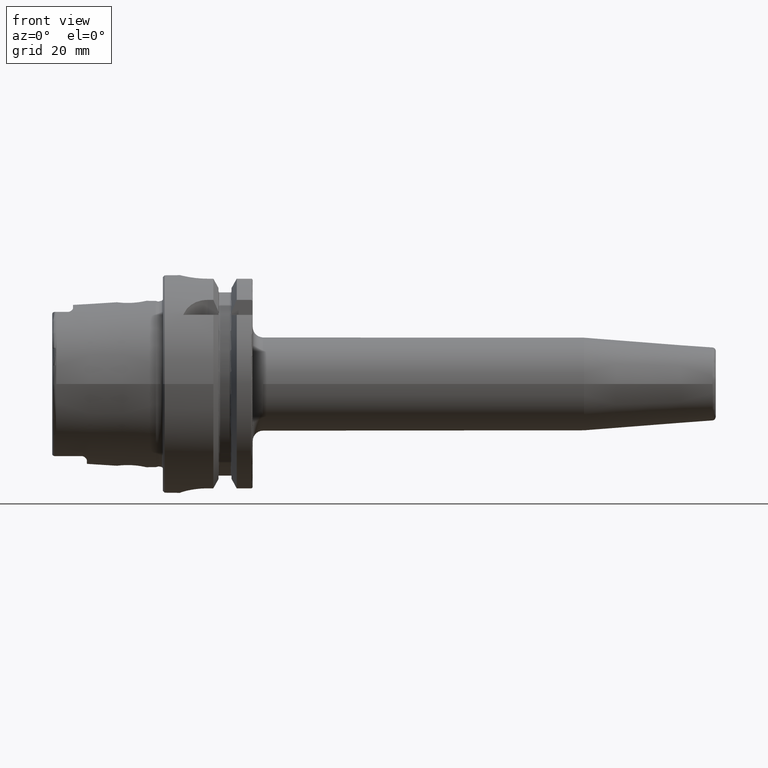
[diagram: clean part render]
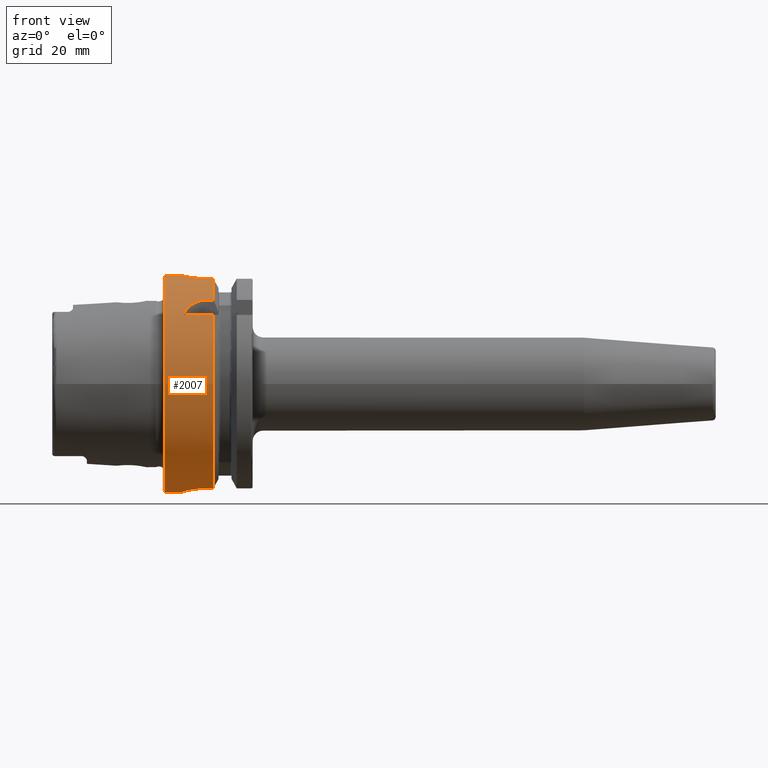
[diagram: same view with one face highlighted and labeled with its STEP entity id]
A machine part, front view. The second image highlights one B-rep face of the part: STEP entity #2007.
In plain terms, the highlighted cylindrical surface (bore or boss wall) has radius 31.5 mm, axis along (1, 0, 0).
Its self-contained STEP definition (entity closure, byte-faithful):
#57=B_SPLINE_CURVE_WITH_KNOTS('',3,(#3708,#3709,#3710,#3711,#3712,#3713,
#3714,#3715,#3716,#3717,#3718,#3719,#3720,#3721,#3722,#3723,#3724,#3725,
#3726,#3727,#3728,#3729,#3730,#3731,#3732,#3733),.UNSPECIFIED.,.F.,.F.,
(4,2,2,2,2,2,2,2,2,2,2,2,4),(0.,0.188688694287612,0.377377388575223,0.56606194688798,
0.754746505200737,0.943431063513494,1.13211562182625,1.32080431611386,1.50949301040147,
1.69818170468909,1.8868703989767,2.07555495728945,2.26423951560221),
 .UNSPECIFIED.);
#58=B_SPLINE_CURVE_WITH_KNOTS('',3,(#3734,#3735,#3736,#3737,#3738,#3739,
#3740,#3741,#3742,#3743),.UNSPECIFIED.,.F.,.F.,(4,2,2,2,4),(2.26423951560221,
2.45292407391497,2.64160863222773,2.83029732651534,3.01898602080295),
 .UNSPECIFIED.);
#61=B_SPLINE_CURVE_WITH_KNOTS('',3,(#3800,#3801,#3802,#3803,#3804,#3805,
#3806,#3807,#3808,#3809,#3810,#3811),.UNSPECIFIED.,.F.,.F.,(4,2,2,2,2,4),
(1.1085154204615,1.31979218709236,1.52798350480179,1.73617482251122,1.90421770126337,
2.07226058001552),.UNSPECIFIED.);
#71=B_SPLINE_CURVE_WITH_KNOTS('',3,(#3980,#3981,#3982,#3983,#3984,#3985,
#3986,#3987,#3988,#3989),.UNSPECIFIED.,.F.,.F.,(4,2,2,2,4),(1.20927420824097,
1.5131742975437,1.81707438684643,2.12000449915965,2.42293461147287),
 .UNSPECIFIED.);
#74=B_SPLINE_CURVE_WITH_KNOTS('',3,(#4015,#4016,#4017,#4018,#4019,#4020,
#4021,#4022,#4023,#4024),.UNSPECIFIED.,.F.,.F.,(4,2,2,2,4),(0.,0.30293011231322,
0.605860224626439,0.90976031392917,1.2136604032319),.UNSPECIFIED.);
#84=B_SPLINE_CURVE_WITH_KNOTS('',3,(#4170,#4171,#4172,#4173,#4174,#4175,
#4176,#4177,#4178,#4179,#4180,#4181,#4182,#4183,#4184,#4185,#4186,#4187),
 .UNSPECIFIED.,.F.,.F.,(4,2,2,2,2,2,2,2,4),(0.,0.302805879979318,0.605611759958635,
0.908372461246501,1.21113316253437,1.51389386382223,1.8166545651101,2.11946044508942,
2.42226632506874),.UNSPECIFIED.);
#103=FACE_BOUND('',#386,.T.);
#263=FACE_OUTER_BOUND('',#385,.T.);
#385=EDGE_LOOP('',(#1694,#1695,#1696,#1697,#1698,#1699,#1700,#1701,#1702,
#1703,#1704,#1705,#1706,#1707,#1708,#1709,#1710,#1711));
#386=EDGE_LOOP('',(#1712,#1713));
#480=LINE('',#3775,#586);
#485=LINE('',#3820,#591);
#503=LINE('',#3997,#609);
#504=LINE('',#4001,#610);
#516=LINE('',#4164,#622);
#519=LINE('',#4194,#625);
#521=LINE('',#4200,#627);
#586=VECTOR('',#2554,10.);
#591=VECTOR('',#2565,10.);
#609=VECTOR('',#2629,10.);
#610=VECTOR('',#2632,10.);
#622=VECTOR('',#2710,10.);
#625=VECTOR('',#2721,10.);
#627=VECTOR('',#2729,31.5);
#696=CIRCLE('',#2172,31.5);
#697=CIRCLE('',#2173,31.5);
#705=CIRCLE('',#2193,31.5);
#706=CIRCLE('',#2195,31.5);
#720=CIRCLE('',#2230,31.5);
#721=CIRCLE('',#2231,31.5);
#864=VERTEX_POINT('',#3705);
#865=VERTEX_POINT('',#3707);
#873=VERTEX_POINT('',#3772);
#874=VERTEX_POINT('',#3774);
#878=VERTEX_POINT('',#3799);
#880=VERTEX_POINT('',#3816);
#885=VERTEX_POINT('',#3832);
#886=VERTEX_POINT('',#3834);
#911=VERTEX_POINT('',#3978);
#912=VERTEX_POINT('',#3979);
#913=VERTEX_POINT('',#3999);
#914=VERTEX_POINT('',#4000);
#917=VERTEX_POINT('',#4014);
#918=VERTEX_POINT('',#4029);
#934=VERTEX_POINT('',#4161);
#935=VERTEX_POINT('',#4163);
#936=VERTEX_POINT('',#4169);
#938=VERTEX_POINT('',#4199);
#1097=EDGE_CURVE('',#865,#864,#57,.T.);
#1098=EDGE_CURVE('',#864,#865,#58,.T.);
#1107=EDGE_CURVE('',#874,#873,#480,.T.);
#1113=EDGE_CURVE('',#873,#878,#61,.T.);
#1117=EDGE_CURVE('',#878,#880,#485,.T.);
#1123=EDGE_CURVE('',#874,#885,#696,.T.);
#1124=EDGE_CURVE('',#885,#886,#697,.T.);
#1158=EDGE_CURVE('',#911,#912,#71,.T.);
#1162=EDGE_CURVE('',#912,#886,#503,.T.);
#1163=EDGE_CURVE('',#913,#914,#504,.T.);
#1168=EDGE_CURVE('',#914,#917,#74,.T.);
#1170=EDGE_CURVE('',#917,#911,#705,.T.);
#1171=EDGE_CURVE('',#913,#918,#706,.T.);
#1203=EDGE_CURVE('',#935,#934,#516,.T.);
#1205=EDGE_CURVE('',#934,#936,#84,.T.);
#1209=EDGE_CURVE('',#936,#918,#519,.T.);
#1211=EDGE_CURVE('',#935,#880,#720,.T.);
#1212=EDGE_CURVE('',#885,#938,#521,.T.);
#1213=EDGE_CURVE('',#938,#938,#721,.T.);
#1694=ORIENTED_EDGE('',*,*,#1117,.T.);
#1695=ORIENTED_EDGE('',*,*,#1211,.F.);
#1696=ORIENTED_EDGE('',*,*,#1203,.T.);
#1697=ORIENTED_EDGE('',*,*,#1205,.T.);
#1698=ORIENTED_EDGE('',*,*,#1209,.T.);
#1699=ORIENTED_EDGE('',*,*,#1171,.F.);
#1700=ORIENTED_EDGE('',*,*,#1163,.T.);
#1701=ORIENTED_EDGE('',*,*,#1168,.T.);
#1702=ORIENTED_EDGE('',*,*,#1170,.T.);
#1703=ORIENTED_EDGE('',*,*,#1158,.T.);
#1704=ORIENTED_EDGE('',*,*,#1162,.T.);
#1705=ORIENTED_EDGE('',*,*,#1124,.F.);
#1706=ORIENTED_EDGE('',*,*,#1212,.T.);
#1707=ORIENTED_EDGE('',*,*,#1213,.T.);
#1708=ORIENTED_EDGE('',*,*,#1212,.F.);
#1709=ORIENTED_EDGE('',*,*,#1123,.F.);
#1710=ORIENTED_EDGE('',*,*,#1107,.T.);
#1711=ORIENTED_EDGE('',*,*,#1113,.T.);
#1712=ORIENTED_EDGE('',*,*,#1097,.T.);
#1713=ORIENTED_EDGE('',*,*,#1098,.T.);
#1920=CYLINDRICAL_SURFACE('',#2229,31.5);
#2007=ADVANCED_FACE('',(#263,#103),#1920,.T.);
#2172=AXIS2_PLACEMENT_3D('',#3833,#2578,#2579);
#2173=AXIS2_PLACEMENT_3D('',#3835,#2580,#2581);
#2193=AXIS2_PLACEMENT_3D('',#4027,#2640,#2641);
#2195=AXIS2_PLACEMENT_3D('',#4030,#2644,#2645);
#2229=AXIS2_PLACEMENT_3D('',#4197,#2725,#2726);
#2230=AXIS2_PLACEMENT_3D('',#4198,#2727,#2728);
#2231=AXIS2_PLACEMENT_3D('',#4201,#2730,#2731);
#2554=DIRECTION('',(-1.,0.,0.));
#2565=DIRECTION('',(1.,0.,0.));
#2578=DIRECTION('center_axis',(1.,0.,0.));
#2579=DIRECTION('ref_axis',(0.,0.,-1.));
#2580=DIRECTION('center_axis',(1.,0.,0.));
#2581=DIRECTION('ref_axis',(0.,0.,-1.));
#2629=DIRECTION('',(1.,0.,0.));
#2632=DIRECTION('',(-1.,0.,0.));
#2640=DIRECTION('center_axis',(-1.,0.,0.));
#2641=DIRECTION('ref_axis',(0.,1.,0.));
#2644=DIRECTION('center_axis',(1.,0.,0.));
#2645=DIRECTION('ref_axis',(0.,0.,-1.));
#2710=DIRECTION('',(-1.,0.,0.));
#2721=DIRECTION('',(1.,0.,0.));
#2725=DIRECTION('center_axis',(1.,0.,0.));
#2726=DIRECTION('ref_axis',(0.,1.,0.));
#2727=DIRECTION('center_axis',(1.,0.,0.));
#2728=DIRECTION('ref_axis',(0.,0.,-1.));
#2729=DIRECTION('',(-1.,0.,0.));
#2730=DIRECTION('center_axis',(1.,0.,0.));
#2731=DIRECTION('ref_axis',(0.,0.,-1.));
#3705=CARTESIAN_POINT('',(12.,31.5,-6.12323399573677E-16));
#3707=CARTESIAN_POINT('',(7.,31.100643080168,5.));
#3708=CARTESIAN_POINT('Ctrl Pts',(7.,31.100643080168,5.));
#3709=CARTESIAN_POINT('Ctrl Pts',(6.37103768570796,31.100643080168,5.));
#3710=CARTESIAN_POINT('Ctrl Pts',(5.70089281579202,31.1216953112949,4.87408354368814));
#3711=CARTESIAN_POINT('Ctrl Pts',(4.46931934300962,31.1973810209855,4.36348784122736));
#3712=CARTESIAN_POINT('Ctrl Pts',(3.90779781350673,31.2508828501623,3.97886562537221));
#3713=CARTESIAN_POINT('Ctrl Pts',(3.021144092268,31.3510329557602,3.09221190413348));
#3714=CARTESIAN_POINT('Ctrl Pts',(2.63651425348544,31.4042391414288,2.5306861925578));
#3715=CARTESIAN_POINT('Ctrl Pts',(2.12591301120586,31.4792463697936,1.29909839144709));
#3716=CARTESIAN_POINT('Ctrl Pts',(2.,31.5,0.62894852770919));
#3717=CARTESIAN_POINT('Ctrl Pts',(2.,31.5,-0.62894852770919));
#3718=CARTESIAN_POINT('Ctrl Pts',(2.12591301120586,31.4792463697936,-1.29909839144709));
#3719=CARTESIAN_POINT('Ctrl Pts',(2.63651425348544,31.4042391414288,-2.5306861925578));
#3720=CARTESIAN_POINT('Ctrl Pts',(3.021144092268,31.3510329557602,-3.09221190413348));
#3721=CARTESIAN_POINT('Ctrl Pts',(3.90779781350673,31.2508828501623,-3.97886562537221));
#3722=CARTESIAN_POINT('Ctrl Pts',(4.46931934300962,31.1973810209855,-4.36348784122736));
#3723=CARTESIAN_POINT('Ctrl Pts',(5.70089281579202,31.1216953112949,-4.87408354368814));
#3724=CARTESIAN_POINT('Ctrl Pts',(6.37103768570796,31.100643080168,-5.));
#3725=CARTESIAN_POINT('Ctrl Pts',(7.62896231429204,31.100643080168,-5.));
#3726=CARTESIAN_POINT('Ctrl Pts',(8.29910718420798,31.1216953112949,-4.87408354368814));
#3727=CARTESIAN_POINT('Ctrl Pts',(9.53068065699038,31.1973810209855,-4.36348784122736));
#3728=CARTESIAN_POINT('Ctrl Pts',(10.0922021864933,31.2508828501623,-3.97886562537221));
#3729=CARTESIAN_POINT('Ctrl Pts',(10.978855907732,31.3510329557602,-3.09221190413348));
#3730=CARTESIAN_POINT('Ctrl Pts',(11.3634857465146,31.4042391414288,-2.53068619255779));
#3731=CARTESIAN_POINT('Ctrl Pts',(11.8740869887941,31.4792463697936,-1.29909839144708));
#3732=CARTESIAN_POINT('Ctrl Pts',(12.,31.5,-0.62894852770919));
#3733=CARTESIAN_POINT('Ctrl Pts',(12.,31.5,-4.16333634234434E-16));
#3734=CARTESIAN_POINT('Ctrl Pts',(12.,31.5,-1.11022302462516E-15));
#3735=CARTESIAN_POINT('Ctrl Pts',(12.,31.5,0.628948527709188));
#3736=CARTESIAN_POINT('Ctrl Pts',(11.8740869887941,31.4792463697936,1.29909839144708));
#3737=CARTESIAN_POINT('Ctrl Pts',(11.3634857465146,31.4042391414288,2.53068619255779));
#3738=CARTESIAN_POINT('Ctrl Pts',(10.978855907732,31.3510329557602,3.09221190413348));
#3739=CARTESIAN_POINT('Ctrl Pts',(10.0922021864933,31.2508828501623,3.97886562537221));
#3740=CARTESIAN_POINT('Ctrl Pts',(9.53068065699038,31.1973810209855,4.36348784122736));
#3741=CARTESIAN_POINT('Ctrl Pts',(8.29910718420798,31.1216953112949,4.87408354368814));
#3742=CARTESIAN_POINT('Ctrl Pts',(7.62896231429204,31.100643080168,5.));
#3743=CARTESIAN_POINT('Ctrl Pts',(7.,31.100643080168,5.));
#3772=CARTESIAN_POINT('',(5.88828609634419,-24.3361870472759,20.));
#3774=CARTESIAN_POINT('',(14.6225009252407,-24.3361870472759,20.));
#3775=CARTESIAN_POINT('',(7.56125046262034,-24.3361870472759,20.));
#3799=CARTESIAN_POINT('',(13.,-20.,24.3361870472759));
#3800=CARTESIAN_POINT('Ctrl Pts',(5.88828609634419,-24.3361870472759,20.));
#3801=CARTESIAN_POINT('Ctrl Pts',(6.11069532820048,-23.9044753723342,20.5253108035937));
#3802=CARTESIAN_POINT('Ctrl Pts',(6.38325999044306,-23.4713523250807,21.0173865932788));
#3803=CARTESIAN_POINT('Ctrl Pts',(7.044898076458,-22.6317364276543,21.9186738868096));
#3804=CARTESIAN_POINT('Ctrl Pts',(7.46714468561685,-22.1861072682036,22.3682920878559));
#3805=CARTESIAN_POINT('Ctrl Pts',(8.46725531403812,-21.3767026700071,23.143042657319));
#3806=CARTESIAN_POINT('Ctrl Pts',(9.04646427720221,-21.0147449478223,23.4683362269255));
#3807=CARTESIAN_POINT('Ctrl Pts',(10.1145001432702,-20.5200081116516,23.9011603796022));
#3808=CARTESIAN_POINT('Ctrl Pts',(10.670823971716,-20.3234249831704,24.0673462447194));
#3809=CARTESIAN_POINT('Ctrl Pts',(11.8334528721306,-20.063121855676,24.2847667849476));
#3810=CARTESIAN_POINT('Ctrl Pts',(12.4398570708262,-20.,24.3361870472759));
#3811=CARTESIAN_POINT('Ctrl Pts',(13.,-20.,24.3361870472759));
#3816=CARTESIAN_POINT('',(14.6225009252407,-20.,24.3361870472759));
#3820=CARTESIAN_POINT('',(7.56125046262035,-20.,24.3361870472759));
#3832=CARTESIAN_POINT('',(14.6225009252407,-31.5,-3.85763741731416E-15));
#3833=CARTESIAN_POINT('Origin',(14.6225009252407,0.,0.));
#3834=CARTESIAN_POINT('',(14.6225009252407,-9.,-30.1869176962472));
#3835=CARTESIAN_POINT('Origin',(14.6225009252407,0.,0.));
#3978=CARTESIAN_POINT('',(5.,-0.999999999999999,-31.4841229828623));
#3979=CARTESIAN_POINT('',(13.,-9.,-30.1869176962472));
#3980=CARTESIAN_POINT('Ctrl Pts',(5.,-0.999999999999997,-31.4841229828623));
#3981=CARTESIAN_POINT('Ctrl Pts',(5.,-2.01248971281587,-31.4519642432536));
#3982=CARTESIAN_POINT('Ctrl Pts',(5.2037733306458,-3.08756640398171,-31.3640631381934));
#3983=CARTESIAN_POINT('Ctrl Pts',(6.02370102555041,-5.05836608044729,-31.1070804719497));
#3984=CARTESIAN_POINT('Ctrl Pts',(6.63955745341061,-5.95454409907418,-30.9405445582004));
#3985=CARTESIAN_POINT('Ctrl Pts',(8.05472493283182,-7.36715009628369,-30.6348764237341));
#3986=CARTESIAN_POINT('Ctrl Pts',(8.9496642215883,-7.98063403850821,-30.4752177477269));
#3987=CARTESIAN_POINT('Ctrl Pts',(10.9171740660538,-8.79719825889174,-30.2496070227108));
#3988=CARTESIAN_POINT('Ctrl Pts',(11.9902329589559,-9.,-30.1869176962472));
#3989=CARTESIAN_POINT('Ctrl Pts',(13.,-9.,-30.1869176962472));
#3997=CARTESIAN_POINT('',(7.56125046262035,-8.99999999999999,-30.1869176962472));
#3999=CARTESIAN_POINT('',(14.6225009252407,9.,-30.1869176962472));
#4000=CARTESIAN_POINT('',(13.,9.00000000000001,-30.1869176962472));
#4001=CARTESIAN_POINT('',(7.56125046262034,9.00000000000001,-30.1869176962472));
#4014=CARTESIAN_POINT('',(5.,1.,-31.4841229828623));
#4015=CARTESIAN_POINT('Ctrl Pts',(13.,9.00000000000001,-30.1869176962472));
#4016=CARTESIAN_POINT('Ctrl Pts',(11.9902329589559,9.00000000000001,-30.1869176962472));
#4017=CARTESIAN_POINT('Ctrl Pts',(10.9171740660538,8.79719825889175,-30.2496070227108));
#4018=CARTESIAN_POINT('Ctrl Pts',(8.9496642215883,7.98063403850822,-30.4752177477269));
#4019=CARTESIAN_POINT('Ctrl Pts',(8.05472493283182,7.3671500962837,-30.6348764237341));
#4020=CARTESIAN_POINT('Ctrl Pts',(6.63955745341061,5.95454409907419,-30.9405445582004));
#4021=CARTESIAN_POINT('Ctrl Pts',(6.02370102555041,5.0583660804473,-31.1070804719497));
#4022=CARTESIAN_POINT('Ctrl Pts',(5.2037733306458,3.08756640398172,-31.3640631381934));
#4023=CARTESIAN_POINT('Ctrl Pts',(5.,2.01248971281588,-31.4519642432536));
#4024=CARTESIAN_POINT('Ctrl Pts',(5.,1.00000000000001,-31.4841229828623));
#4027=CARTESIAN_POINT('Origin',(5.,0.,0.));
#4029=CARTESIAN_POINT('',(14.6225009252407,8.,30.4671954731642));
#4030=CARTESIAN_POINT('Origin',(14.6225009252407,0.,0.));
#4161=CARTESIAN_POINT('',(13.,-8.,30.4671954731642));
#4163=CARTESIAN_POINT('',(14.6225009252407,-8.,30.4671954731642));
#4164=CARTESIAN_POINT('',(7.56125046262034,-8.,30.4671954731642));
#4169=CARTESIAN_POINT('',(13.,8.,30.4671954731642));
#4170=CARTESIAN_POINT('Ctrl Pts',(13.,-8.,30.4671954731643));
#4171=CARTESIAN_POINT('Ctrl Pts',(11.9906470667356,-8.,30.4671954731643));
#4172=CARTESIAN_POINT('Ctrl Pts',(10.9172075930168,-7.79737202490167,30.5225803085525));
#4173=CARTESIAN_POINT('Ctrl Pts',(8.94758399331801,-6.97961067526075,30.719895002943));
#4174=CARTESIAN_POINT('Ctrl Pts',(8.05099322370438,-6.36470172268915,30.8586830127239));
#4175=CARTESIAN_POINT('Ctrl Pts',(6.63540388828045,-4.94911238726521,31.1170994373341));
#4176=CARTESIAN_POINT('Ctrl Pts',(6.02041263015313,-4.05247770930662,31.2539072689014));
#4177=CARTESIAN_POINT('Ctrl Pts',(5.20259114887399,-2.08269813865027,31.4466478906396));
#4178=CARTESIAN_POINT('Ctrl Pts',(5.,-1.00920233762622,31.5));
#4179=CARTESIAN_POINT('Ctrl Pts',(5.,1.00920233762622,31.5));
#4180=CARTESIAN_POINT('Ctrl Pts',(5.20259114887399,2.08269813865027,31.4466478906396));
#4181=CARTESIAN_POINT('Ctrl Pts',(6.02041263015313,4.05247770930662,31.2539072689014));
#4182=CARTESIAN_POINT('Ctrl Pts',(6.63540388828045,4.94911238726521,31.1170994373341));
#4183=CARTESIAN_POINT('Ctrl Pts',(8.05099322370439,6.36470172268915,30.8586830127239));
#4184=CARTESIAN_POINT('Ctrl Pts',(8.94758399331801,6.97961067526075,30.719895002943));
#4185=CARTESIAN_POINT('Ctrl Pts',(10.9172075930168,7.79737202490167,30.5225803085525));
#4186=CARTESIAN_POINT('Ctrl Pts',(11.9906470667356,8.,30.4671954731643));
#4187=CARTESIAN_POINT('Ctrl Pts',(13.,8.,30.4671954731643));
#4194=CARTESIAN_POINT('',(7.56125046262035,8.,30.4671954731642));
#4197=CARTESIAN_POINT('Origin',(7.56125046262034,0.,0.));
#4198=CARTESIAN_POINT('Origin',(14.6225009252407,0.,0.));
#4199=CARTESIAN_POINT('',(0.5,-31.5,-3.85763741731416E-15));
#4200=CARTESIAN_POINT('',(7.56125046262034,-31.5,-3.85763741731416E-15));
#4201=CARTESIAN_POINT('Origin',(0.5,0.,0.));